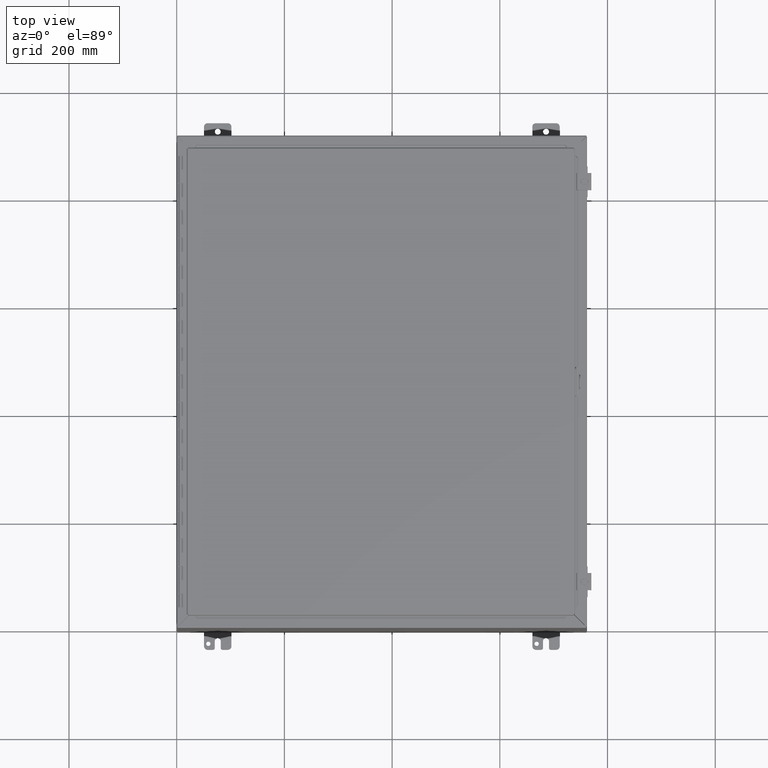
[diagram: clean part render]
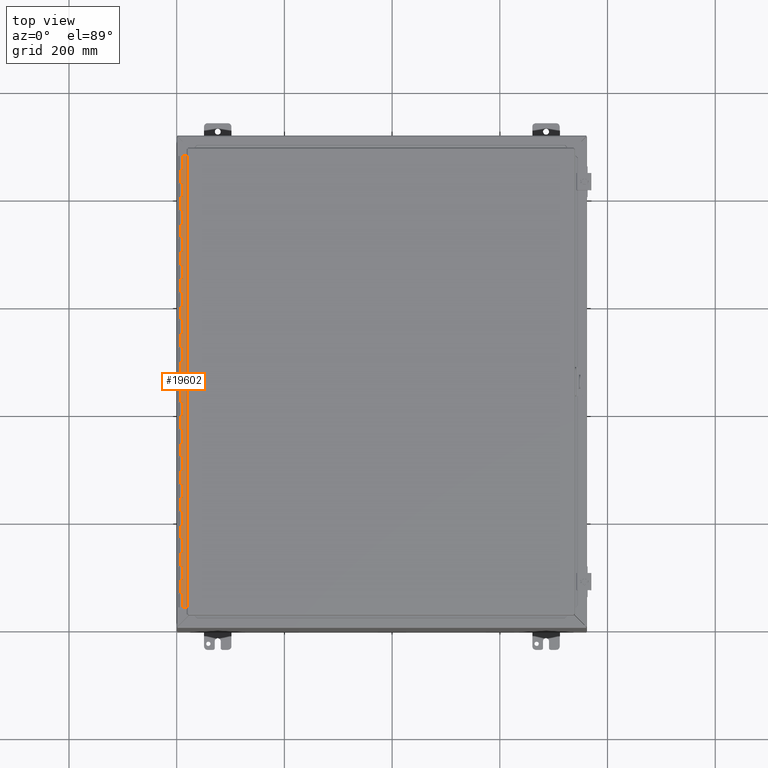
[diagram: same view with one face highlighted and labeled with its STEP entity id]
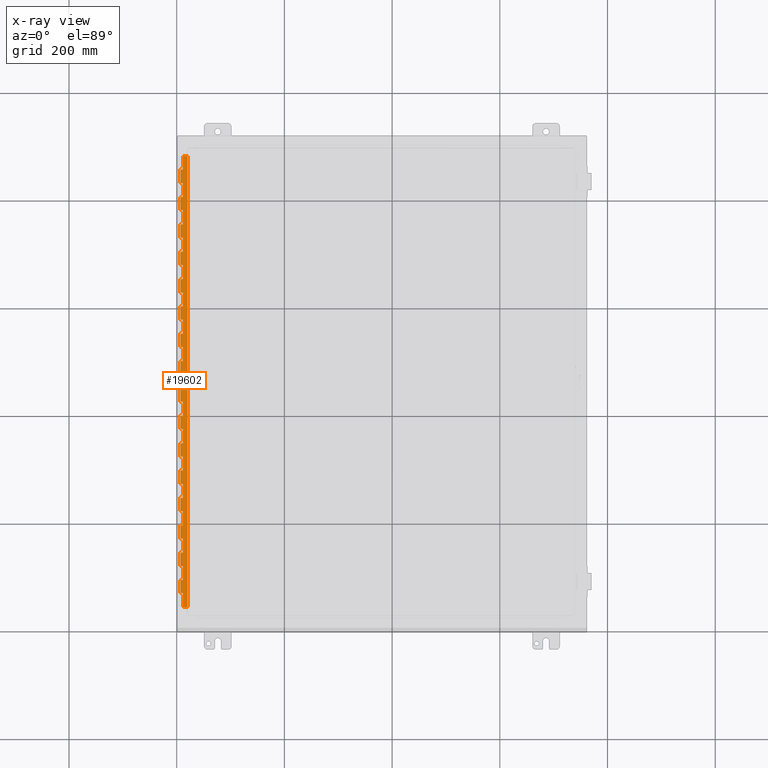
[diagram: x-ray of the same camera — body ghosted, the highlighted face saturated]
A machine part, top view. The second image highlights one B-rep face of the part: STEP entity #19602.
The next image is the same camera in x-ray: the body ghosted, the highlighted face saturated — about 0% of this face is hidden behind the body in this view.
In plain terms, the highlighted planar face has unit normal (0.0872, -0, 0.9962).
Its self-contained STEP definition (entity closure, byte-faithful):
#17258=CARTESIAN_POINT('',(0.0,-0.125,1.000000000000008));
#17259=VERTEX_POINT('',#17258);
#17269=CARTESIAN_POINT('',(-0.18,-0.125,1.000000000000008));
#17270=VERTEX_POINT('',#17269);
#17271=CARTESIAN_POINT('',(-0.18,-0.125,1.000000000000013));
#17272=DIRECTION('',(1.0,0.0,0.0));
#17273=VECTOR('',#17272,0.18);
#17274=LINE('',#17271,#17273);
#17275=EDGE_CURVE('',#17270,#17259,#17274,.T.);
#17318=CARTESIAN_POINT('',(-0.18,-0.125,0.0));
#17319=VERTEX_POINT('',#17318);
#17333=CARTESIAN_POINT('',(-0.18,-0.125,0.0));
#17334=DIRECTION('',(0.0,0.0,1.0));
#17335=VECTOR('',#17334,1.000000000000008);
#17336=LINE('',#17333,#17335);
#17337=EDGE_CURVE('',#17319,#17270,#17336,.T.);
#17347=CARTESIAN_POINT('',(0.0,-0.125,3.000000000000007));
#17348=VERTEX_POINT('',#17347);
#17358=CARTESIAN_POINT('',(-0.18,-0.125,3.000000000000007));
#17359=VERTEX_POINT('',#17358);
#17360=CARTESIAN_POINT('',(-0.18,-0.125,3.000000000000013));
#17361=DIRECTION('',(1.0,0.0,0.0));
#17362=VECTOR('',#17361,0.18);
#17363=LINE('',#17360,#17362);
#17364=EDGE_CURVE('',#17359,#17348,#17363,.T.);
#17414=CARTESIAN_POINT('',(-0.18,-0.125,1.980000000000012));
#17415=VERTEX_POINT('',#17414);
#17416=CARTESIAN_POINT('',(-0.18,-0.125,1.980000000000012));
#17417=DIRECTION('',(0.0,0.0,1.0));
#17418=VECTOR('',#17417,1.019999999999995);
#17419=LINE('',#17416,#17418);
#17420=EDGE_CURVE('',#17415,#17359,#17419,.T.);
#17438=CARTESIAN_POINT('',(0.0,-0.125,1.980000000000007));
#17439=VERTEX_POINT('',#17438);
#17471=CARTESIAN_POINT('',(0.0,-0.125,1.980000000000012));
#17472=DIRECTION('',(-1.0,0.0,0.0));
#17473=VECTOR('',#17472,0.18);
#17474=LINE('',#17471,#17473);
#17475=EDGE_CURVE('',#17439,#17415,#17474,.T.);
#17485=CARTESIAN_POINT('',(0.0,-0.125,5.000000000000006));
#17486=VERTEX_POINT('',#17485);
#17496=CARTESIAN_POINT('',(-0.18,-0.125,5.000000000000007));
#17497=VERTEX_POINT('',#17496);
#17498=CARTESIAN_POINT('',(-0.18,-0.125,5.000000000000012));
#17499=DIRECTION('',(1.0,0.0,0.0));
#17500=VECTOR('',#17499,0.18);
#17501=LINE('',#17498,#17500);
#17502=EDGE_CURVE('',#17497,#17486,#17501,.T.);
#17552=CARTESIAN_POINT('',(-0.18,-0.125,3.980000000000012));
#17553=VERTEX_POINT('',#17552);
#17554=CARTESIAN_POINT('',(-0.18,-0.125,3.980000000000012));
#17555=DIRECTION('',(0.0,0.0,1.0));
#17556=VECTOR('',#17555,1.019999999999995);
#17557=LINE('',#17554,#17556);
#17558=EDGE_CURVE('',#17553,#17497,#17557,.T.);
#17576=CARTESIAN_POINT('',(0.0,-0.125,3.980000000000006));
#17577=VERTEX_POINT('',#17576);
#17609=CARTESIAN_POINT('',(0.0,-0.125,3.980000000000012));
#17610=DIRECTION('',(-1.0,0.0,0.0));
#17611=VECTOR('',#17610,0.18);
#17612=LINE('',#17609,#17611);
#17613=EDGE_CURVE('',#17577,#17553,#17612,.T.);
#17623=CARTESIAN_POINT('',(0.0,-0.125,7.000000000000006));
#17624=VERTEX_POINT('',#17623);
#17634=CARTESIAN_POINT('',(-0.18,-0.125,7.000000000000006));
#17635=VERTEX_POINT('',#17634);
#17636=CARTESIAN_POINT('',(-0.18,-0.125,7.000000000000012));
#17637=DIRECTION('',(1.0,0.0,0.0));
#17638=VECTOR('',#17637,0.18);
#17639=LINE('',#17636,#17638);
#17640=EDGE_CURVE('',#17635,#17624,#17639,.T.);
#17690=CARTESIAN_POINT('',(-0.18,-0.125,5.980000000000011));
#17691=VERTEX_POINT('',#17690);
#17692=CARTESIAN_POINT('',(-0.18,-0.125,5.980000000000011));
#17693=DIRECTION('',(0.0,0.0,1.0));
#17694=VECTOR('',#17693,1.019999999999995);
#17695=LINE('',#17692,#17694);
#17696=EDGE_CURVE('',#17691,#17635,#17695,.T.);
#17714=CARTESIAN_POINT('',(0.0,-0.125,5.980000000000006));
#17715=VERTEX_POINT('',#17714);
#17747=CARTESIAN_POINT('',(0.0,-0.125,5.980000000000011));
#17748=DIRECTION('',(-1.0,0.0,0.0));
#17749=VECTOR('',#17748,0.18);
#17750=LINE('',#17747,#17749);
#17751=EDGE_CURVE('',#17715,#17691,#17750,.T.);
#17761=CARTESIAN_POINT('',(0.0,-0.125,9.000000000000005));
#17762=VERTEX_POINT('',#17761);
#17772=CARTESIAN_POINT('',(-0.18,-0.125,9.000000000000005));
#17773=VERTEX_POINT('',#17772);
#17774=CARTESIAN_POINT('',(-0.18,-0.125,9.000000000000011));
#17775=DIRECTION('',(1.0,0.0,0.0));
#17776=VECTOR('',#17775,0.18);
#17777=LINE('',#17774,#17776);
#17778=EDGE_CURVE('',#17773,#17762,#17777,.T.);
#17828=CARTESIAN_POINT('',(-0.18,-0.125,7.980000000000011));
#17829=VERTEX_POINT('',#17828);
#17830=CARTESIAN_POINT('',(-0.18,-0.125,7.980000000000011));
#17831=DIRECTION('',(0.0,0.0,1.0));
#17832=VECTOR('',#17831,1.019999999999994);
#17833=LINE('',#17830,#17832);
#17834=EDGE_CURVE('',#17829,#17773,#17833,.T.);
#17852=CARTESIAN_POINT('',(0.0,-0.125,7.980000000000005));
#17853=VERTEX_POINT('',#17852);
#17885=CARTESIAN_POINT('',(0.0,-0.125,7.980000000000011));
#17886=DIRECTION('',(-1.0,0.0,0.0));
#17887=VECTOR('',#17886,0.18);
#17888=LINE('',#17885,#17887);
#17889=EDGE_CURVE('',#17853,#17829,#17888,.T.);
#17899=CARTESIAN_POINT('',(0.0,-0.125,11.000000000000009));
#17900=VERTEX_POINT('',#17899);
#17910=CARTESIAN_POINT('',(-0.18,-0.125,11.000000000000009));
#17911=VERTEX_POINT('',#17910);
#17912=CARTESIAN_POINT('',(-0.18,-0.125,11.000000000000014));
#17913=DIRECTION('',(1.0,0.0,0.0));
#17914=VECTOR('',#17913,0.18);
#17915=LINE('',#17912,#17914);
#17916=EDGE_CURVE('',#17911,#17900,#17915,.T.);
#17966=CARTESIAN_POINT('',(-0.18,-0.125,9.980000000000013));
#17967=VERTEX_POINT('',#17966);
#17968=CARTESIAN_POINT('',(-0.18,-0.125,9.980000000000015));
#17969=DIRECTION('',(0.0,0.0,1.0));
#17970=VECTOR('',#17969,1.019999999999994);
#17971=LINE('',#17968,#17970);
#17972=EDGE_CURVE('',#17967,#17911,#17971,.T.);
#17990=CARTESIAN_POINT('',(0.0,-0.125,9.980000000000009));
#17991=VERTEX_POINT('',#17990);
#18023=CARTESIAN_POINT('',(0.0,-0.125,9.980000000000013));
#18024=DIRECTION('',(-1.0,0.0,0.0));
#18025=VECTOR('',#18024,0.18);
#18026=LINE('',#18023,#18025);
#18027=EDGE_CURVE('',#17991,#17967,#18026,.T.);
#18037=CARTESIAN_POINT('',(0.0,-0.125,13.000000000000007));
#18038=VERTEX_POINT('',#18037);
#18048=CARTESIAN_POINT('',(-0.18,-0.125,13.000000000000007));
#18049=VERTEX_POINT('',#18048);
#18050=CARTESIAN_POINT('',(-0.18,-0.125,13.000000000000012));
#18051=DIRECTION('',(1.0,0.0,0.0));
#18052=VECTOR('',#18051,0.18);
#18053=LINE('',#18050,#18052);
#18054=EDGE_CURVE('',#18049,#18038,#18053,.T.);
#18104=CARTESIAN_POINT('',(-0.18,-0.125,11.980000000000013));
#18105=VERTEX_POINT('',#18104);
#18106=CARTESIAN_POINT('',(-0.18,-0.125,11.980000000000011));
#18107=DIRECTION('',(0.0,0.0,1.0));
#18108=VECTOR('',#18107,1.019999999999996);
#18109=LINE('',#18106,#18108);
#18110=EDGE_CURVE('',#18105,#18049,#18109,.T.);
#18128=CARTESIAN_POINT('',(0.0,-0.125,11.980000000000008));
#18129=VERTEX_POINT('',#18128);
#18161=CARTESIAN_POINT('',(0.0,-0.125,11.980000000000013));
#18162=DIRECTION('',(-1.0,0.0,0.0));
#18163=VECTOR('',#18162,0.18);
#18164=LINE('',#18161,#18163);
#18165=EDGE_CURVE('',#18129,#18105,#18164,.T.);
#18175=CARTESIAN_POINT('',(0.0,-0.125,15.000000000000007));
#18176=VERTEX_POINT('',#18175);
#18186=CARTESIAN_POINT('',(-0.18,-0.125,15.000000000000007));
#18187=VERTEX_POINT('',#18186);
#18188=CARTESIAN_POINT('',(-0.18,-0.125,15.000000000000012));
#18189=DIRECTION('',(1.0,0.0,0.0));
#18190=VECTOR('',#18189,0.18);
#18191=LINE('',#18188,#18190);
#18192=EDGE_CURVE('',#18187,#18176,#18191,.T.);
#18242=CARTESIAN_POINT('',(-0.18,-0.125,13.980000000000011));
#18243=VERTEX_POINT('',#18242);
#18244=CARTESIAN_POINT('',(-0.18,-0.125,13.980000000000011));
#18245=DIRECTION('',(0.0,0.0,1.0));
#18246=VECTOR('',#18245,1.019999999999996);
#18247=LINE('',#18244,#18246);
#18248=EDGE_CURVE('',#18243,#18187,#18247,.T.);
#18266=CARTESIAN_POINT('',(0.0,-0.125,13.980000000000006));
#18267=VERTEX_POINT('',#18266);
#18299=CARTESIAN_POINT('',(0.0,-0.125,13.980000000000011));
#18300=DIRECTION('',(-1.0,0.0,0.0));
#18301=VECTOR('',#18300,0.18);
#18302=LINE('',#18299,#18301);
#18303=EDGE_CURVE('',#18267,#18243,#18302,.T.);
#18313=CARTESIAN_POINT('',(0.0,-0.125,17.000000000000007));
#18314=VERTEX_POINT('',#18313);
#18324=CARTESIAN_POINT('',(-0.18,-0.125,17.000000000000007));
#18325=VERTEX_POINT('',#18324);
#18326=CARTESIAN_POINT('',(-0.18,-0.125,17.000000000000011));
#18327=DIRECTION('',(1.0,0.0,0.0));
#18328=VECTOR('',#18327,0.18);
#18329=LINE('',#18326,#18328);
#18330=EDGE_CURVE('',#18325,#18314,#18329,.T.);
#18380=CARTESIAN_POINT('',(-0.18,-0.125,15.980000000000011));
#18381=VERTEX_POINT('',#18380);
#18382=CARTESIAN_POINT('',(-0.18,-0.125,15.980000000000011));
#18383=DIRECTION('',(0.0,0.0,1.0));
#18384=VECTOR('',#18383,1.019999999999996);
#18385=LINE('',#18382,#18384);
#18386=EDGE_CURVE('',#18381,#18325,#18385,.T.);
#18404=CARTESIAN_POINT('',(0.0,-0.125,15.980000000000006));
#18405=VERTEX_POINT('',#18404);
#18437=CARTESIAN_POINT('',(-6.162976E-033,-0.125,15.980000000000011));
#18438=DIRECTION('',(-1.0,0.0,0.0));
#18439=VECTOR('',#18438,0.18);
#18440=LINE('',#18437,#18439);
#18441=EDGE_CURVE('',#18405,#18381,#18440,.T.);
#18451=CARTESIAN_POINT('',(0.0,-0.125,19.000000000000007));
#18452=VERTEX_POINT('',#18451);
#18462=CARTESIAN_POINT('',(-0.18,-0.125,19.000000000000007));
#18463=VERTEX_POINT('',#18462);
#18464=CARTESIAN_POINT('',(-0.18,-0.125,19.000000000000011));
#18465=DIRECTION('',(1.0,0.0,0.0));
#18466=VECTOR('',#18465,0.18);
#18467=LINE('',#18464,#18466);
#18468=EDGE_CURVE('',#18463,#18452,#18467,.T.);
#18518=CARTESIAN_POINT('',(-0.18,-0.125,17.980000000000011));
#18519=VERTEX_POINT('',#18518);
#18520=CARTESIAN_POINT('',(-0.18,-0.125,17.980000000000011));
#18521=DIRECTION('',(0.0,0.0,1.0));
#18522=VECTOR('',#18521,1.019999999999996);
#18523=LINE('',#18520,#18522);
#18524=EDGE_CURVE('',#18519,#18463,#18523,.T.);
#18542=CARTESIAN_POINT('',(0.0,-0.125,17.980000000000004));
#18543=VERTEX_POINT('',#18542);
#18575=CARTESIAN_POINT('',(-6.162976E-033,-0.125,17.980000000000011));
#18576=DIRECTION('',(-1.0,0.0,0.0));
#18577=VECTOR('',#18576,0.18);
#18578=LINE('',#18575,#18577);
#18579=EDGE_CURVE('',#18543,#18519,#18578,.T.);
#18589=CARTESIAN_POINT('',(0.0,-0.125,21.000000000000007));
#18590=VERTEX_POINT('',#18589);
#18600=CARTESIAN_POINT('',(-0.18,-0.125,21.000000000000007));
#18601=VERTEX_POINT('',#18600);
#18602=CARTESIAN_POINT('',(-0.18,-0.125,21.000000000000011));
#18603=DIRECTION('',(1.0,0.0,0.0));
#18604=VECTOR('',#18603,0.18);
#18605=LINE('',#18602,#18604);
#18606=EDGE_CURVE('',#18601,#18590,#18605,.T.);
#18656=CARTESIAN_POINT('',(-0.18,-0.125,19.980000000000011));
#18657=VERTEX_POINT('',#18656);
#18658=CARTESIAN_POINT('',(-0.18,-0.125,19.980000000000011));
#18659=DIRECTION('',(0.0,0.0,1.0));
#18660=VECTOR('',#18659,1.019999999999996);
#18661=LINE('',#18658,#18660);
#18662=EDGE_CURVE('',#18657,#18601,#18661,.T.);
#18680=CARTESIAN_POINT('',(0.0,-0.125,19.980000000000004));
#18681=VERTEX_POINT('',#18680);
#18713=CARTESIAN_POINT('',(-3.081488E-033,-0.125,19.980000000000011));
#18714=DIRECTION('',(-1.0,0.0,0.0));
#18715=VECTOR('',#18714,0.18);
#18716=LINE('',#18713,#18715);
#18717=EDGE_CURVE('',#18681,#18657,#18716,.T.);
#18727=CARTESIAN_POINT('',(0.0,-0.125,23.000000000000007));
#18728=VERTEX_POINT('',#18727);
#18738=CARTESIAN_POINT('',(-0.18,-0.125,23.000000000000007));
#18739=VERTEX_POINT('',#18738);
#18740=CARTESIAN_POINT('',(-0.18,-0.125,23.000000000000014));
#18741=DIRECTION('',(1.0,0.0,0.0));
#18742=VECTOR('',#18741,0.18);
#18743=LINE('',#18740,#18742);
#18744=EDGE_CURVE('',#18739,#18728,#18743,.T.);
#18794=CARTESIAN_POINT('',(-0.18,-0.125,21.980000000000011));
#18795=VERTEX_POINT('',#18794);
#18796=CARTESIAN_POINT('',(-0.18,-0.125,21.980000000000011));
#18797=DIRECTION('',(0.0,0.0,1.0));
#18798=VECTOR('',#18797,1.019999999999996);
#18799=LINE('',#18796,#18798);
#18800=EDGE_CURVE('',#18795,#18739,#18799,.T.);
#18818=CARTESIAN_POINT('',(0.0,-0.125,21.980000000000004));
#18819=VERTEX_POINT('',#18818);
#18851=CARTESIAN_POINT('',(-3.081488E-033,-0.125,21.980000000000011));
#18852=DIRECTION('',(-1.0,0.0,0.0));
#18853=VECTOR('',#18852,0.18);
#18854=LINE('',#18851,#18853);
#18855=EDGE_CURVE('',#18819,#18795,#18854,.T.);
#18865=CARTESIAN_POINT('',(0.0,-0.125,25.000000000000007));
#18866=VERTEX_POINT('',#18865);
#18876=CARTESIAN_POINT('',(-0.18,-0.125,25.000000000000007));
#18877=VERTEX_POINT('',#18876);
#18878=CARTESIAN_POINT('',(-0.18,-0.125,25.000000000000014));
#18879=DIRECTION('',(1.0,0.0,0.0));
#18880=VECTOR('',#18879,0.18);
#18881=LINE('',#18878,#18880);
#18882=EDGE_CURVE('',#18877,#18866,#18881,.T.);
#18932=CARTESIAN_POINT('',(-0.18,-0.125,23.980000000000011));
#18933=VERTEX_POINT('',#18932);
#18934=CARTESIAN_POINT('',(-0.18,-0.125,23.980000000000011));
#18935=DIRECTION('',(0.0,0.0,1.0));
#18936=VECTOR('',#18935,1.019999999999996);
#18937=LINE('',#18934,#18936);
#18938=EDGE_CURVE('',#18933,#18877,#18937,.T.);
#18956=CARTESIAN_POINT('',(0.0,-0.125,23.980000000000008));
#18957=VERTEX_POINT('',#18956);
#18989=CARTESIAN_POINT('',(-3.081488E-033,-0.125,23.980000000000011));
#18990=DIRECTION('',(-1.0,0.0,0.0));
#18991=VECTOR('',#18990,0.18);
#18992=LINE('',#18989,#18991);
#18993=EDGE_CURVE('',#18957,#18933,#18992,.T.);
#19003=CARTESIAN_POINT('',(0.0,-0.125,27.000000000000007));
#19004=VERTEX_POINT('',#19003);
#19014=CARTESIAN_POINT('',(-0.18,-0.125,27.000000000000007));
#19015=VERTEX_POINT('',#19014);
#19016=CARTESIAN_POINT('',(-0.18,-0.125,27.000000000000011));
#19017=DIRECTION('',(1.0,0.0,0.0));
#19018=VECTOR('',#19017,0.18);
#19019=LINE('',#19016,#19018);
#19020=EDGE_CURVE('',#19015,#19004,#19019,.T.);
#19070=CARTESIAN_POINT('',(-0.18,-0.125,25.980000000000011));
#19071=VERTEX_POINT('',#19070);
#19072=CARTESIAN_POINT('',(-0.18,-0.125,25.980000000000011));
#19073=DIRECTION('',(0.0,0.0,1.0));
#19074=VECTOR('',#19073,1.019999999999996);
#19075=LINE('',#19072,#19074);
#19076=EDGE_CURVE('',#19071,#19015,#19075,.T.);
#19094=CARTESIAN_POINT('',(0.0,-0.125,25.980000000000008));
#19095=VERTEX_POINT('',#19094);
#19127=CARTESIAN_POINT('',(-6.162976E-033,-0.125,25.980000000000011));
#19128=DIRECTION('',(-1.0,0.0,0.0));
#19129=VECTOR('',#19128,0.18);
#19130=LINE('',#19127,#19129);
#19131=EDGE_CURVE('',#19095,#19071,#19130,.T.);
#19141=CARTESIAN_POINT('',(0.0,-0.125,29.000000000000007));
#19142=VERTEX_POINT('',#19141);
#19152=CARTESIAN_POINT('',(-0.18,-0.125,29.000000000000007));
#19153=VERTEX_POINT('',#19152);
#19154=CARTESIAN_POINT('',(-0.18,-0.125,29.000000000000011));
#19155=DIRECTION('',(1.0,0.0,0.0));
#19156=VECTOR('',#19155,0.18);
#19157=LINE('',#19154,#19156);
#19158=EDGE_CURVE('',#19153,#19142,#19157,.T.);
#19208=CARTESIAN_POINT('',(-0.18,-0.125,27.980000000000011));
#19209=VERTEX_POINT('',#19208);
#19210=CARTESIAN_POINT('',(-0.18,-0.125,27.980000000000011));
#19211=DIRECTION('',(0.0,0.0,1.0));
#19212=VECTOR('',#19211,1.019999999999996);
#19213=LINE('',#19210,#19212);
#19214=EDGE_CURVE('',#19209,#19153,#19213,.T.);
#19232=CARTESIAN_POINT('',(0.0,-0.125,27.980000000000004));
#19233=VERTEX_POINT('',#19232);
#19265=CARTESIAN_POINT('',(-6.162976E-033,-0.125,27.980000000000011));
#19266=DIRECTION('',(-1.0,0.0,0.0));
#19267=VECTOR('',#19266,0.18);
#19268=LINE('',#19265,#19267);
#19269=EDGE_CURVE('',#19233,#19209,#19268,.T.);
#19279=CARTESIAN_POINT('',(0.0,-0.125,31.000000000000007));
#19280=VERTEX_POINT('',#19279);
#19290=CARTESIAN_POINT('',(-0.18,-0.125,31.000000000000007));
#19291=VERTEX_POINT('',#19290);
#19292=CARTESIAN_POINT('',(-0.18,-0.125,31.000000000000011));
#19293=DIRECTION('',(1.0,0.0,0.0));
#19294=VECTOR('',#19293,0.18);
#19295=LINE('',#19292,#19294);
#19296=EDGE_CURVE('',#19291,#19280,#19295,.T.);
#19346=CARTESIAN_POINT('',(-0.18,-0.125,29.980000000000011));
#19347=VERTEX_POINT('',#19346);
#19348=CARTESIAN_POINT('',(-0.18,-0.125,29.980000000000011));
#19349=DIRECTION('',(0.0,0.0,1.0));
#19350=VECTOR('',#19349,1.019999999999996);
#19351=LINE('',#19348,#19350);
#19352=EDGE_CURVE('',#19347,#19291,#19351,.T.);
#19370=CARTESIAN_POINT('',(0.0,-0.125,29.980000000000004));
#19371=VERTEX_POINT('',#19370);
#19403=CARTESIAN_POINT('',(-3.081488E-033,-0.125,29.980000000000011));
#19404=DIRECTION('',(-1.0,0.0,0.0));
#19405=VECTOR('',#19404,0.18);
#19406=LINE('',#19403,#19405);
#19407=EDGE_CURVE('',#19371,#19347,#19406,.T.);
#19412=CARTESIAN_POINT('',(1.530808E-017,-0.125,0.0));
#19413=DIRECTION('',(0.0,-1.0,0.0));
#19414=DIRECTION('',(0.0,0.0,-1.0));
#19415=AXIS2_PLACEMENT_3D('',#19412,#19413,#19414);
#19416=PLANE('',#19415);
#19417=ORIENTED_EDGE('',*,*,#17337,.T.);
#19418=ORIENTED_EDGE('',*,*,#17275,.T.);
#19419=CARTESIAN_POINT('',(1.530808E-017,-0.125,1.000000000000008));
#19420=DIRECTION('',(0.0,0.0,1.0));
#19421=VECTOR('',#19420,0.979999999999999);
#19422=LINE('',#19419,#19421);
#19423=EDGE_CURVE('',#17259,#17439,#19422,.T.);
#19424=ORIENTED_EDGE('',*,*,#19423,.T.);
#19425=ORIENTED_EDGE('',*,*,#17475,.T.);
#19426=ORIENTED_EDGE('',*,*,#17420,.T.);
#19427=ORIENTED_EDGE('',*,*,#17364,.T.);
#19428=CARTESIAN_POINT('',(1.530808E-017,-0.125,3.000000000000007));
#19429=DIRECTION('',(0.0,0.0,1.0));
#19430=VECTOR('',#19429,0.979999999999999);
#19431=LINE('',#19428,#19430);
#19432=EDGE_CURVE('',#17348,#17577,#19431,.T.);
#19433=ORIENTED_EDGE('',*,*,#19432,.T.);
#19434=ORIENTED_EDGE('',*,*,#17613,.T.);
#19435=ORIENTED_EDGE('',*,*,#17558,.T.);
#19436=ORIENTED_EDGE('',*,*,#17502,.T.);
#19437=CARTESIAN_POINT('',(1.530808E-017,-0.125,5.000000000000006));
#19438=DIRECTION('',(0.0,0.0,1.0));
#19439=VECTOR('',#19438,0.98);
#19440=LINE('',#19437,#19439);
#19441=EDGE_CURVE('',#17486,#17715,#19440,.T.);
#19442=ORIENTED_EDGE('',*,*,#19441,.T.);
#19443=ORIENTED_EDGE('',*,*,#17751,.T.);
#19444=ORIENTED_EDGE('',*,*,#17696,.T.);
#19445=ORIENTED_EDGE('',*,*,#17640,.T.);
#19446=CARTESIAN_POINT('',(1.530808E-017,-0.125,7.000000000000006));
#19447=DIRECTION('',(0.0,0.0,1.0));
#19448=VECTOR('',#19447,0.979999999999999);
#19449=LINE('',#19446,#19448);
#19450=EDGE_CURVE('',#17624,#17853,#19449,.T.);
#19451=ORIENTED_EDGE('',*,*,#19450,.T.);
#19452=ORIENTED_EDGE('',*,*,#17889,.T.);
#19453=ORIENTED_EDGE('',*,*,#17834,.T.);
#19454=ORIENTED_EDGE('',*,*,#17778,.T.);
#19455=CARTESIAN_POINT('',(1.530808E-017,-0.125,9.000000000000005));
#19456=DIRECTION('',(0.0,0.0,1.0));
#19457=VECTOR('',#19456,0.980000000000004);
#19458=LINE('',#19455,#19457);
#19459=EDGE_CURVE('',#17762,#17991,#19458,.T.);
#19460=ORIENTED_EDGE('',*,*,#19459,.T.);
#19461=ORIENTED_EDGE('',*,*,#18027,.T.);
#19462=ORIENTED_EDGE('',*,*,#17972,.T.);
#19463=ORIENTED_EDGE('',*,*,#17916,.T.);
#19464=CARTESIAN_POINT('',(1.530808E-017,-0.125,11.000000000000009));
#19465=DIRECTION('',(0.0,0.0,1.0));
#19466=VECTOR('',#19465,0.979999999999999);
#19467=LINE('',#19464,#19466);
#19468=EDGE_CURVE('',#17900,#18129,#19467,.T.);
#19469=ORIENTED_EDGE('',*,*,#19468,.T.);
#19470=ORIENTED_EDGE('',*,*,#18165,.T.);
#19471=ORIENTED_EDGE('',*,*,#18110,.T.);
#19472=ORIENTED_EDGE('',*,*,#18054,.T.);
#19473=CARTESIAN_POINT('',(1.530808E-017,-0.125,13.000000000000007));
#19474=DIRECTION('',(0.0,0.0,1.0));
#19475=VECTOR('',#19474,0.979999999999999);
#19476=LINE('',#19473,#19475);
#19477=EDGE_CURVE('',#18038,#18267,#19476,.T.);
#19478=ORIENTED_EDGE('',*,*,#19477,.T.);
#19479=ORIENTED_EDGE('',*,*,#18303,.T.);
#19480=ORIENTED_EDGE('',*,*,#18248,.T.);
#19481=ORIENTED_EDGE('',*,*,#18192,.T.);
#19482=CARTESIAN_POINT('',(1.530808E-017,-0.125,15.000000000000007));
#19483=DIRECTION('',(0.0,0.0,1.0));
#19484=VECTOR('',#19483,0.979999999999999);
#19485=LINE('',#19482,#19484);
#19486=EDGE_CURVE('',#18176,#18405,#19485,.T.);
#19487=ORIENTED_EDGE('',*,*,#19486,.T.);
#19488=ORIENTED_EDGE('',*,*,#18441,.T.);
#19489=ORIENTED_EDGE('',*,*,#18386,.T.);
#19490=ORIENTED_EDGE('',*,*,#18330,.T.);
#19491=CARTESIAN_POINT('',(1.530808E-017,-0.125,17.000000000000007));
#19492=DIRECTION('',(0.0,0.0,1.0));
#19493=VECTOR('',#19492,0.979999999999997);
#19494=LINE('',#19491,#19493);
#19495=EDGE_CURVE('',#18314,#18543,#19494,.T.);
#19496=ORIENTED_EDGE('',*,*,#19495,.T.);
#19497=ORIENTED_EDGE('',*,*,#18579,.T.);
#19498=ORIENTED_EDGE('',*,*,#18524,.T.);
#19499=ORIENTED_EDGE('',*,*,#18468,.T.);
#19500=CARTESIAN_POINT('',(1.530808E-017,-0.125,19.000000000000007));
#19501=DIRECTION('',(0.0,0.0,1.0));
#19502=VECTOR('',#19501,0.979999999999997);
#19503=LINE('',#19500,#19502);
#19504=EDGE_CURVE('',#18452,#18681,#19503,.T.);
#19505=ORIENTED_EDGE('',*,*,#19504,.T.);
#19506=ORIENTED_EDGE('',*,*,#18717,.T.);
#19507=ORIENTED_EDGE('',*,*,#18662,.T.);
#19508=ORIENTED_EDGE('',*,*,#18606,.T.);
#19509=CARTESIAN_POINT('',(1.530808E-017,-0.125,21.000000000000007));
#19510=DIRECTION('',(0.0,0.0,1.0));
#19511=VECTOR('',#19510,0.979999999999997);
#19512=LINE('',#19509,#19511);
#19513=EDGE_CURVE('',#18590,#18819,#19512,.T.);
#19514=ORIENTED_EDGE('',*,*,#19513,.T.);
#19515=ORIENTED_EDGE('',*,*,#18855,.T.);
#19516=ORIENTED_EDGE('',*,*,#18800,.T.);
#19517=ORIENTED_EDGE('',*,*,#18744,.T.);
#19518=CARTESIAN_POINT('',(1.530808E-017,-0.125,23.000000000000007));
#19519=DIRECTION('',(0.0,0.0,1.0));
#19520=VECTOR('',#19519,0.98);
#19521=LINE('',#19518,#19520);
#19522=EDGE_CURVE('',#18728,#18957,#19521,.T.);
#19523=ORIENTED_EDGE('',*,*,#19522,.T.);
#19524=ORIENTED_EDGE('',*,*,#18993,.T.);
#19525=ORIENTED_EDGE('',*,*,#18938,.T.);
#19526=ORIENTED_EDGE('',*,*,#18882,.T.);
#19527=CARTESIAN_POINT('',(1.530808E-017,-0.125,25.000000000000007));
#19528=DIRECTION('',(0.0,0.0,1.0));
#19529=VECTOR('',#19528,0.98);
#19530=LINE('',#19527,#19529);
#19531=EDGE_CURVE('',#18866,#19095,#19530,.T.);
#19532=ORIENTED_EDGE('',*,*,#19531,.T.);
#19533=ORIENTED_EDGE('',*,*,#19131,.T.);
#19534=ORIENTED_EDGE('',*,*,#19076,.T.);
#19535=ORIENTED_EDGE('',*,*,#19020,.T.);
#19536=CARTESIAN_POINT('',(1.530808E-017,-0.125,27.000000000000007));
#19537=DIRECTION('',(0.0,0.0,1.0));
#19538=VECTOR('',#19537,0.979999999999997);
#19539=LINE('',#19536,#19538);
#19540=EDGE_CURVE('',#19004,#19233,#19539,.T.);
#19541=ORIENTED_EDGE('',*,*,#19540,.T.);
#19542=ORIENTED_EDGE('',*,*,#19269,.T.);
#19543=ORIENTED_EDGE('',*,*,#19214,.T.);
#19544=ORIENTED_EDGE('',*,*,#19158,.T.);
#19545=CARTESIAN_POINT('',(1.530808E-017,-0.125,29.000000000000007));
#19546=DIRECTION('',(0.0,0.0,1.0));
#19547=VECTOR('',#19546,0.979999999999997);
#19548=LINE('',#19545,#19547);
#19549=EDGE_CURVE('',#19142,#19371,#19548,.T.);
#19550=ORIENTED_EDGE('',*,*,#19549,.T.);
#19551=ORIENTED_EDGE('',*,*,#19407,.T.);
#19552=ORIENTED_EDGE('',*,*,#19352,.T.);
#19553=ORIENTED_EDGE('',*,*,#19296,.T.);
#19554=CARTESIAN_POINT('',(0.0,-0.125,31.980000000000004));
#19555=VERTEX_POINT('',#19554);
#19556=CARTESIAN_POINT('',(1.530808E-017,-0.125,31.000000000000007));
#19557=DIRECTION('',(0.0,0.0,1.0));
#19558=VECTOR('',#19557,0.979999999999997);
#19559=LINE('',#19556,#19558);
#19560=EDGE_CURVE('',#19280,#19555,#19559,.T.);
#19561=ORIENTED_EDGE('',*,*,#19560,.T.);
#19562=CARTESIAN_POINT('',(-0.18,-0.125,31.980000000000011));
#19563=VERTEX_POINT('',#19562);
#19564=CARTESIAN_POINT('',(-6.162976E-033,-0.125,31.980000000000011));
#19565=DIRECTION('',(-1.0,0.0,0.0));
#19566=VECTOR('',#19565,0.18);
#19567=LINE('',#19564,#19566);
#19568=EDGE_CURVE('',#19555,#19563,#19567,.T.);
#19569=ORIENTED_EDGE('',*,*,#19568,.T.);
#19570=CARTESIAN_POINT('',(-0.18,-0.125,33.000000000000007));
#19571=VERTEX_POINT('',#19570);
#19572=CARTESIAN_POINT('',(-0.18,-0.125,31.980000000000011));
#19573=DIRECTION('',(0.0,0.0,1.0));
#19574=VECTOR('',#19573,1.019999999999996);
#19575=LINE('',#19572,#19574);
#19576=EDGE_CURVE('',#19563,#19571,#19575,.T.);
#19577=ORIENTED_EDGE('',*,*,#19576,.T.);
#19578=CARTESIAN_POINT('',(-0.511005076730884,-0.125,33.000000000000007));
#19579=VERTEX_POINT('',#19578);
#19580=CARTESIAN_POINT('',(-0.18,-0.125,33.000000000000007));
#19581=DIRECTION('',(-1.0,0.0,0.0));
#19582=VECTOR('',#19581,0.331005076730884);
#19583=LINE('',#19580,#19582);
#19584=EDGE_CURVE('',#19571,#19579,#19583,.T.);
#19585=ORIENTED_EDGE('',*,*,#19584,.T.);
#19586=CARTESIAN_POINT('',(-0.511005076730884,-0.125,0.0));
#19587=VERTEX_POINT('',#19586);
#19588=CARTESIAN_POINT('',(-0.511005076730884,-0.125,0.0));
#19589=DIRECTION('',(0.0,0.0,1.0));
#19590=VECTOR('',#19589,33.000000000000007);
#19591=LINE('',#19588,#19590);
#19592=EDGE_CURVE('',#19587,#19579,#19591,.T.);
#19593=ORIENTED_EDGE('',*,*,#19592,.F.);
#19594=CARTESIAN_POINT('',(-0.511005076730884,-0.125,0.0));
#19595=DIRECTION('',(1.0,0.0,0.0));
#19596=VECTOR('',#19595,0.331005076730884);
#19597=LINE('',#19594,#19596);
#19598=EDGE_CURVE('',#19587,#17319,#19597,.T.);
#19599=ORIENTED_EDGE('',*,*,#19598,.T.);
#19600=EDGE_LOOP('',(#19417,#19418,#19424,#19425,#19426,#19427,#19433,#19434,#19435,#19436,#19442,#19443,#19444,#19445,#19451,#19452,#19453,#19454,#19460,#19461,#19462,#19463,#19469,#19470,#19471,#19472,#19478,#19479,#19480,#19481,#19487,#19488,#19489,#19490,#19496,#19497,#19498,#19499,#19505,#19506,#19507,#19508,#19514,#19515,#19516,#19517,#19523,#19524,#19525,#19526,#19532,#19533,#19534,#19535,#19541,#19542,#19543,#19544,#19550,#19551,#19552,#19553,#19561,#19569,#19577,#19585,#19593,#19599));
#19601=FACE_OUTER_BOUND('',#19600,.T.);
#19602=ADVANCED_FACE('',(#19601),#19416,.T.);